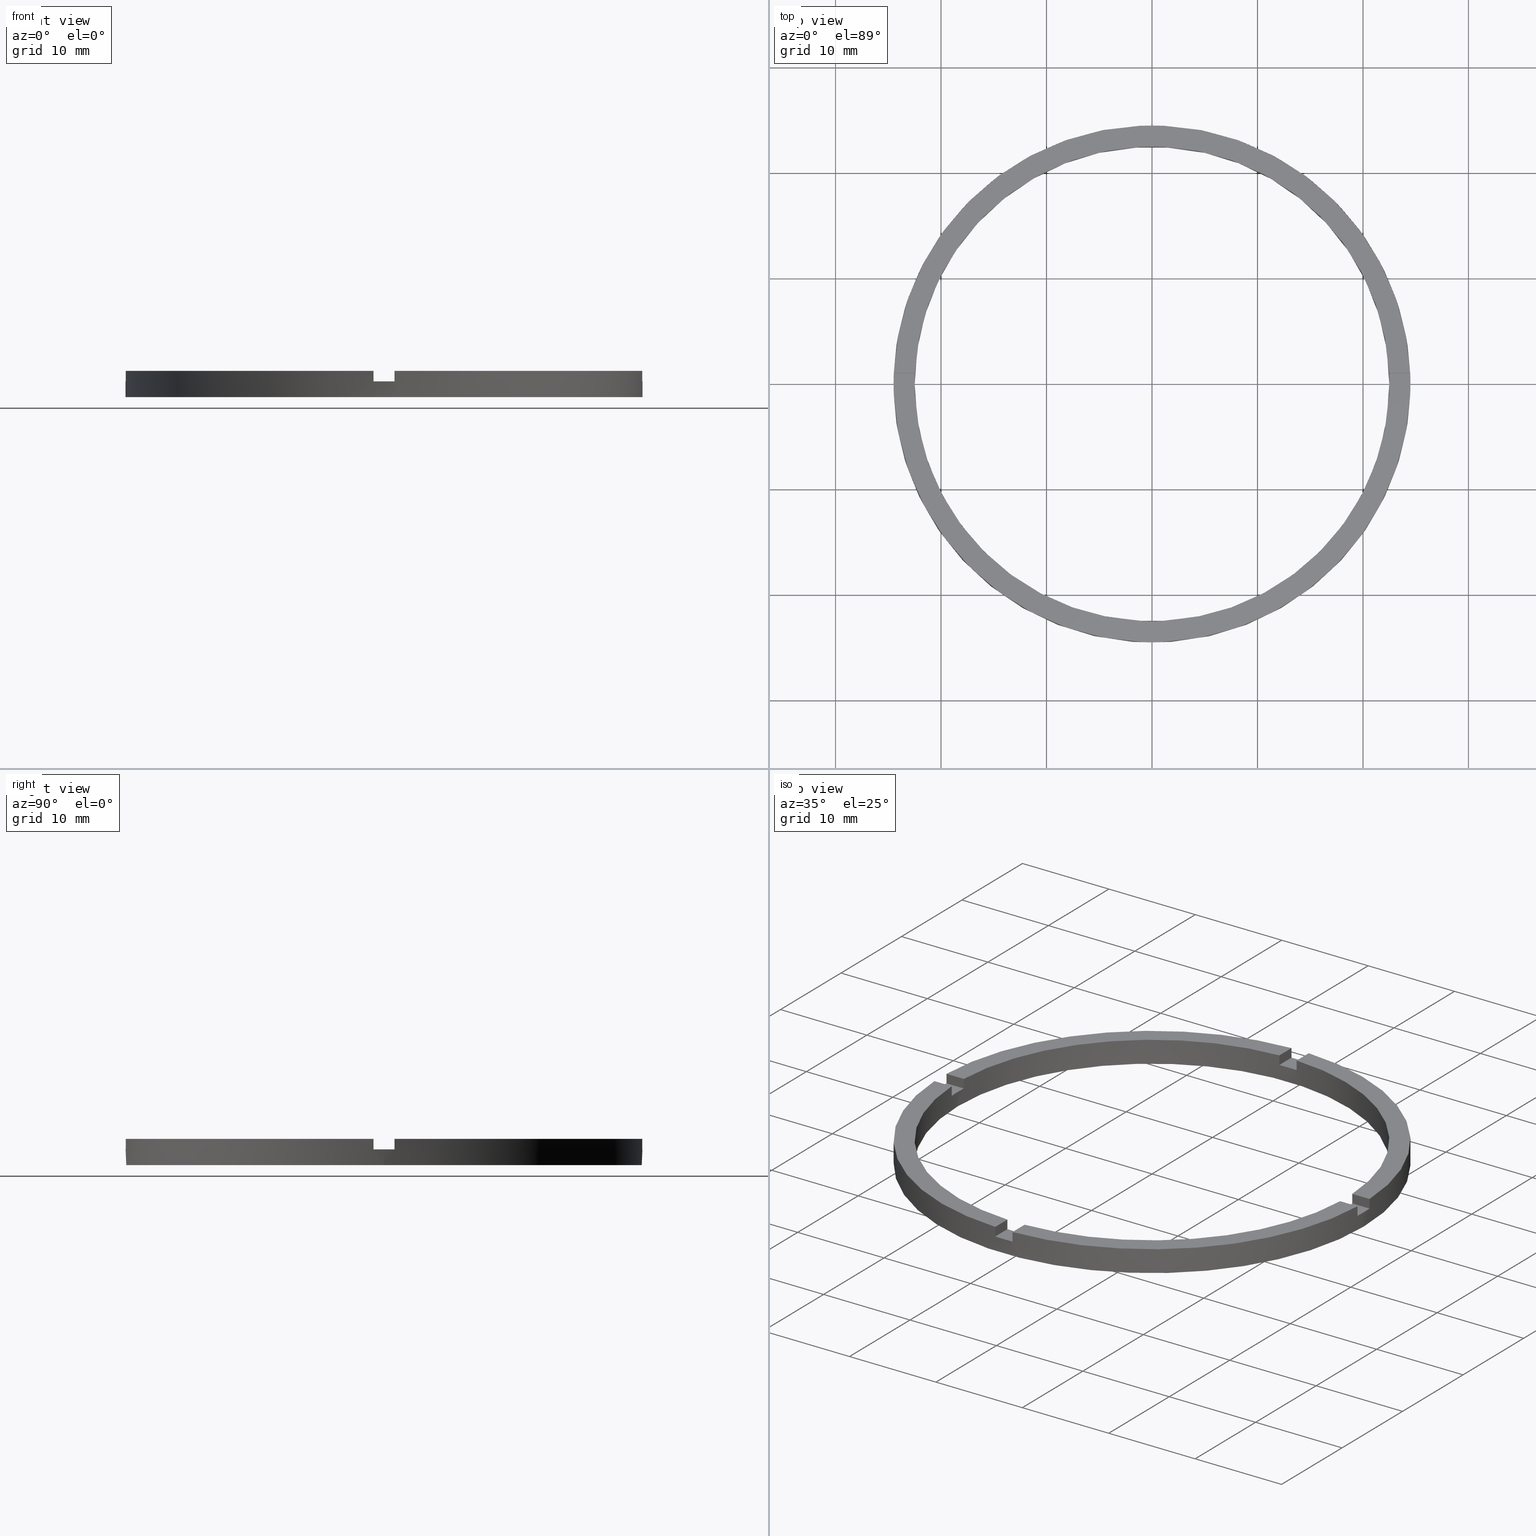
[diagram: canonical four-view strip — front | top / right | iso, engineering-drawing reading convention]
A machine part, canonical four-view strip (front | top / right | iso — engineering-drawing reading convention). The complete STEP part file that produces these views, byte-faithful:
ISO-10303-21;
HEADER;
FILE_DESCRIPTION (( 'STEP AP203' ),
    '1' );
FILE_NAME ('514102.step',
    '2024-12-26T02:37:42',
    ( 'MSI' ),
    ( '' ),
    'SwSTEP 2.0',
    'SolidWorks 2020',
    '' );
FILE_SCHEMA (( 'CONFIG_CONTROL_DESIGN' ));
ENDSEC;

DATA;
#1 = ADVANCED_FACE ( 'NONE', ( #558 ), #567, .F. ) ;
#2 = ORIENTED_EDGE ( 'NONE', *, *, #452, .F. ) ;
#3 = ORIENTED_EDGE ( 'NONE', *, *, #160, .T. ) ;
#4 = APPROVAL_ROLE ( '' ) ;
#5 = ORIENTED_EDGE ( 'NONE', *, *, #212, .F. ) ;
#6 = CARTESIAN_POINT ( 'NONE',  ( 0.000000000000000000, 0.000000000000000000, 2.500000000000000000 ) ) ;
#7 = CARTESIAN_POINT ( 'NONE',  ( -22.47776679298902636, -1.000000000000025313, 2.500000000000000000 ) ) ;
#8 = LINE ( 'NONE', #716, #304 ) ;
#9 = DIRECTION ( 'NONE',  ( 1.000000000000000000, 1.734723475976807341E-16, -0.000000000000000000 ) ) ;
#10 = VERTEX_POINT ( 'NONE', #254 ) ;
#11 = VECTOR ( 'NONE', #710, 1000.000000000000000 ) ;
#12 = EDGE_CURVE ( 'NONE', #632, #373, #291, .T. ) ;
#13 = EDGE_LOOP ( 'NONE', ( #458, #637 ) ) ;
#14 = ORIENTED_EDGE ( 'NONE', *, *, #428, .T. ) ;
#15 = DIRECTION ( 'NONE',  ( 0.000000000000000000, 0.000000000000000000, 1.000000000000000000 ) ) ;
#16 = EDGE_CURVE ( 'NONE', #448, #340, #294, .T. ) ;
#17 = PERSON_AND_ORGANIZATION_ROLE ( 'design_supplier' ) ;
#18 = FACE_OUTER_BOUND ( 'NONE', #708, .T. ) ;
#19 = DIRECTION ( 'NONE',  ( 0.000000000000000000, 0.000000000000000000, 1.000000000000000000 ) ) ;
#20 = MANIFOLD_SOLID_BREP ( '�г�-����1', #677 ) ;
#21 = VERTEX_POINT ( 'NONE', #198 ) ;
#22 = AXIS2_PLACEMENT_3D ( 'NONE', #473, #104, #445 ) ;
#23 = ORIENTED_EDGE ( 'NONE', *, *, #513, .F. ) ;
#24 = CARTESIAN_POINT ( 'NONE',  ( -22.50000000000000355, 0.000000000000000000, 2.500000000000000000 ) ) ;
#25 = VERTEX_POINT ( 'NONE', #407 ) ;
#26 = VERTEX_POINT ( 'NONE', #675 ) ;
#27 = DIRECTION ( 'NONE',  ( 0.000000000000000000, 0.000000000000000000, 1.000000000000000000 ) ) ;
#28 = EDGE_LOOP ( 'NONE', ( #115, #14, #33, #717 ) ) ;
#29 = PRODUCT_DEFINITION_FORMATION_WITH_SPECIFIED_SOURCE ( '�κ�', '', #320, .NOT_KNOWN. ) ;
#30 = ORIENTED_EDGE ( 'NONE', *, *, #414, .F. ) ;
#31 = ORIENTED_EDGE ( 'NONE', *, *, #699, .F. ) ;
#32 = LINE ( 'NONE', #184, #555 ) ;
#33 = ORIENTED_EDGE ( 'NONE', *, *, #140, .T. ) ;
#34 = PLANE ( 'NONE',  #22 ) ;
#35 =( NAMED_UNIT ( * ) PLANE_ANGLE_UNIT ( ) SI_UNIT ( $, .RADIAN. ) );
#36 = LINE ( 'NONE', #100, #565 ) ;
#37 = DIRECTION ( 'NONE',  ( -1.301042606982605321E-16, 1.000000000000000000, -0.000000000000000000 ) ) ;
#38 = EDGE_LOOP ( 'NONE', ( #185, #371, #123, #92, #451, #166, #627, #118, #329, #117, #604, #634 ) ) ;
#39 = CIRCLE ( 'NONE', #418, 24.50000000000000000 ) ;
#40 = ORIENTED_EDGE ( 'NONE', *, *, #129, .F. ) ;
#41 = ORIENTED_EDGE ( 'NONE', *, *, #683, .T. ) ;
#42 = CARTESIAN_POINT ( 'NONE',  ( 0.000000000000000000, 0.000000000000000000, 2.500000000000000000 ) ) ;
#43 = CARTESIAN_POINT ( 'NONE',  ( -14.50000000000018652, 0.9999999999999759082, 1.500000000000000000 ) ) ;
#44 = LINE ( 'NONE', #438, #46 ) ;
#45 = CARTESIAN_POINT ( 'NONE',  ( 0.000000000000000000, 0.000000000000000000, 1.500000000000000000 ) ) ;
#46 = VECTOR ( 'NONE', #333, 1000.000000000000000 ) ;
#47 = VECTOR ( 'NONE', #181, 1000.000000000000000 ) ;
#48 = LINE ( 'NONE', #630, #54 ) ;
#49 = CARTESIAN_POINT ( 'NONE',  ( 0.000000000000000000, 0.000000000000000000, 1.500000000000000000 ) ) ;
#50 = DIRECTION ( 'NONE',  ( -0.000000000000000000, -0.000000000000000000, -1.000000000000000000 ) ) ;
#51 = FACE_OUTER_BOUND ( 'NONE', #753, .T. ) ;
#52 = DIRECTION ( 'NONE',  ( 1.000000000000000000, 0.000000000000000000, 0.000000000000000000 ) ) ;
#53 = LINE ( 'NONE', #159, #571 ) ;
#54 = VECTOR ( 'NONE', #727, 1000.000000000000000 ) ;
#55 = VECTOR ( 'NONE', #539, 1000.000000000000000 ) ;
#56 = ORIENTED_EDGE ( 'NONE', *, *, #232, .F. ) ;
#57 = VECTOR ( 'NONE', #37, 1000.000000000000000 ) ;
#58 = FACE_OUTER_BOUND ( 'NONE', #13, .T. ) ;
#59 = EDGE_CURVE ( 'NONE', #300, #448, #548, .T. ) ;
#60 = CIRCLE ( 'NONE', #313, 24.50000000000000000 ) ;
#61 = EDGE_CURVE ( 'NONE', #21, #437, #561, .T. ) ;
#62 = CIRCLE ( 'NONE', #656, 24.50000000000000000 ) ;
#63 = VECTOR ( 'NONE', #352, 1000.000000000000000 ) ;
#64 = CIRCLE ( 'NONE', #477, 24.50000000000000000 ) ;
#65 = AXIS2_PLACEMENT_3D ( 'NONE', #441, #484, #576 ) ;
#66 = FACE_OUTER_BOUND ( 'NONE', #38, .T. ) ;
#67 = ADVANCED_FACE ( 'NONE', ( #51 ), #146, .T. ) ;
#68 = CIRCLE ( 'NONE', #135, 22.50000000000000355 ) ;
#69 = FACE_OUTER_BOUND ( 'NONE', #226, .T. ) ;
#70 = CARTESIAN_POINT ( 'NONE',  ( 0.9999999999999740208, 22.47776679298902636, 2.500000000000000000 ) ) ;
#71 = VECTOR ( 'NONE', #510, 1000.000000000000000 ) ;
#72 = VERTEX_POINT ( 'NONE', #655 ) ;
#73 = CIRCLE ( 'NONE', #700, 22.50000000000000355 ) ;
#74 = ORIENTED_EDGE ( 'NONE', *, *, #780, .T. ) ;
#75 = VECTOR ( 'NONE', #636, 1000.000000000000000 ) ;
#76 = ORIENTED_EDGE ( 'NONE', *, *, #177, .F. ) ;
#77 = ADVANCED_FACE ( 'NONE', ( #18 ), #575, .T. ) ;
#78 = VECTOR ( 'NONE', #665, 1000.000000000000000 ) ;
#79 = CARTESIAN_POINT ( 'NONE',  ( -22.47776679298902636, 0.9999999999999746869, 1.500000000000000000 ) ) ;
#80 = LINE ( 'NONE', #444, #358 ) ;
#81 = AXIS2_PLACEMENT_3D ( 'NONE', #395, #563, #389 ) ;
#82 = LINE ( 'NONE', #376, #103 ) ;
#83 = SECURITY_CLASSIFICATION ( '', '', #105 ) ;
#84 = CARTESIAN_POINT ( 'NONE',  ( 0.9999999999999740208, 24.47958332978729601, 1.500000000000000000 ) ) ;
#85 = FACE_OUTER_BOUND ( 'NONE', #424, .T. ) ;
#86 = DIRECTION ( 'NONE',  ( 0.000000000000000000, 0.000000000000000000, 1.000000000000000000 ) ) ;
#87 = CIRCLE ( 'NONE', #447, 22.50000000000000355 ) ;
#88 = ADVANCED_FACE ( 'NONE', ( #286 ), #194, .T. ) ;
#89 = VECTOR ( 'NONE', #401, 1000.000000000000000 ) ;
#90 = ORIENTED_EDGE ( 'NONE', *, *, #469, .F. ) ;
#91 = CIRCLE ( 'NONE', #755, 22.50000000000000355 ) ;
#92 = ORIENTED_EDGE ( 'NONE', *, *, #714, .F. ) ;
#93 = AXIS2_PLACEMENT_3D ( 'NONE', #353, #406, #457 ) ;
#94 = CIRCLE ( 'NONE', #199, 24.50000000000000000 ) ;
#95 = EDGE_CURVE ( 'NONE', #693, #437, #308, .T. ) ;
#96 = CARTESIAN_POINT ( 'NONE',  ( -1.000000000000162093, -14.50000000000018119, 1.500000000000000000 ) ) ;
#97 = DATE_TIME_ROLE ( 'creation_date' ) ;
#98 = CARTESIAN_POINT ( 'NONE',  ( 0.9999999999998389066, -22.47776679298903346, 2.500000000000000000 ) ) ;
#99 = DIRECTION ( 'NONE',  ( 1.000000000000000000, 0.000000000000000000, 0.000000000000000000 ) ) ;
#100 = CARTESIAN_POINT ( 'NONE',  ( 0.9999999999998380185, -14.50000000000018119, 2.500000000000000000 ) ) ;
#101 = FACE_OUTER_BOUND ( 'NONE', #288, .T. ) ;
#102 = EDGE_CURVE ( 'NONE', #300, #560, #545, .T. ) ;
#103 = VECTOR ( 'NONE', #718, 1000.000000000000000 ) ;
#104 = DIRECTION ( 'NONE',  ( 0.000000000000000000, 0.000000000000000000, 1.000000000000000000 ) ) ;
#105 = SECURITY_CLASSIFICATION_LEVEL ( 'unclassified' ) ;
#106 = CARTESIAN_POINT ( 'NONE',  ( -24.47958332978729601, -1.000000000000025757, 2.500000000000000000 ) ) ;
#107 = VERTEX_POINT ( 'NONE', #646 ) ;
#108 = VERTEX_POINT ( 'NONE', #680 ) ;
#109 = AXIS2_PLACEMENT_3D ( 'NONE', #600, #19, #735 ) ;
#110 = ORIENTED_EDGE ( 'NONE', *, *, #301, .T. ) ;
#111 = ORIENTED_EDGE ( 'NONE', *, *, #492, .T. ) ;
#112 = CARTESIAN_POINT ( 'NONE',  ( -14.50000000000018652, -1.000000000000023981, 1.500000000000000000 ) ) ;
#113 = PERSON_AND_ORGANIZATION_ROLE ( 'creator' ) ;
#114 = CARTESIAN_POINT ( 'NONE',  ( 14.49999999999999467, -1.000000000000158096, 2.500000000000000000 ) ) ;
#115 = ORIENTED_EDGE ( 'NONE', *, *, #143, .F. ) ;
#116 = AXIS2_PLACEMENT_3D ( 'NONE', #663, #369, #416 ) ;
#117 = ORIENTED_EDGE ( 'NONE', *, *, #95, .F. ) ;
#118 = ORIENTED_EDGE ( 'NONE', *, *, #740, .F. ) ;
#119 = ORIENTED_EDGE ( 'NONE', *, *, #610, .T. ) ;
#120 = DIRECTION ( 'NONE',  ( 1.000000000000000000, 1.734723475976807341E-16, 0.000000000000000000 ) ) ;
#121 = DIRECTION ( 'NONE',  ( 1.000000000000000000, 4.336808689942018352E-17, 0.000000000000000000 ) ) ;
#122 = ORIENTED_EDGE ( 'NONE', *, *, #730, .T. ) ;
#123 = ORIENTED_EDGE ( 'NONE', *, *, #699, .T. ) ;
#124 = EDGE_CURVE ( 'NONE', #300, #326, #293, .T. ) ;
#125 = DIRECTION ( 'NONE',  ( -0.000000000000000000, -0.000000000000000000, -1.000000000000000000 ) ) ;
#126 = DIRECTION ( 'NONE',  ( 1.000000000000000000, 0.000000000000000000, 0.000000000000000000 ) ) ;
#127 = CC_DESIGN_SECURITY_CLASSIFICATION ( #83, ( #29 ) ) ;
#128 = DIRECTION ( 'NONE',  ( -0.000000000000000000, 0.000000000000000000, 1.000000000000000000 ) ) ;
#129 = EDGE_CURVE ( 'NONE', #108, #707, #53, .T. ) ;
#130 = PERSON ( 'δָ��', 'δָ��', 'δָ��', ('δָ��'), ('δָ��'), ('δָ��') ) ;
#131 = EDGE_CURVE ( 'NONE', #271, #172, #275, .T. ) ;
#132 = DIRECTION ( 'NONE',  ( 1.000000000000000000, 4.336808689942018352E-17, 0.000000000000000000 ) ) ;
#133 = EDGE_CURVE ( 'NONE', #72, #107, #569, .T. ) ;
#134 = DIRECTION ( 'NONE',  ( -1.301042606982605321E-16, 1.000000000000000000, -0.000000000000000000 ) ) ;
#135 = AXIS2_PLACEMENT_3D ( 'NONE', #593, #729, #237 ) ;
#136 = DIRECTION ( 'NONE',  ( 1.000000000000000000, 0.000000000000000000, 0.000000000000000000 ) ) ;
#137 = ADVANCED_FACE ( 'NONE', ( #564 ), #506, .T. ) ;
#138 = PLANE ( 'NONE',  #467 ) ;
#139 = PERSON_AND_ORGANIZATION_ROLE ( 'classification_officer' ) ;
#140 = EDGE_CURVE ( 'NONE', #258, #528, #32, .T. ) ;
#141 = AXIS2_PLACEMENT_3D ( 'NONE', #485, #577, #99 ) ;
#142 = ORIENTED_EDGE ( 'NONE', *, *, #714, .T. ) ;
#143 = EDGE_CURVE ( 'NONE', #546, #220, #573, .T. ) ;
#144 = ADVANCED_FACE ( 'NONE', ( #310 ), #478, .F. ) ;
#145 = DIRECTION ( 'NONE',  ( 1.000000000000000000, 0.000000000000000000, 0.000000000000000000 ) ) ;
#146 = PLANE ( 'NONE',  #109 ) ;
#147 = ORIENTED_EDGE ( 'NONE', *, *, #171, .F. ) ;
#148 = CARTESIAN_POINT ( 'NONE',  ( 0.000000000000000000, 0.000000000000000000, 1.500000000000000000 ) ) ;
#149 = APPROVAL_ROLE ( '' ) ;
#150 = CARTESIAN_POINT ( 'NONE',  ( 0.9999999999998380185, -14.50000000000018119, 1.500000000000000000 ) ) ;
#151 = CARTESIAN_POINT ( 'NONE',  ( 0.000000000000000000, 0.000000000000000000, 1.500000000000000000 ) ) ;
#152 = DIRECTION ( 'NONE',  ( 1.000000000000000000, 0.000000000000000000, 0.000000000000000000 ) ) ;
#153 = CARTESIAN_POINT ( 'NONE',  ( 0.000000000000000000, 0.000000000000000000, 2.500000000000000000 ) ) ;
#154 = DIRECTION ( 'NONE',  ( 1.301042606982605321E-16, -1.000000000000000000, 0.000000000000000000 ) ) ;
#155 = DIRECTION ( 'NONE',  ( -1.000000000000000000, -1.734723475976807341E-16, 0.000000000000000000 ) ) ;
#156 = DIRECTION ( 'NONE',  ( 1.000000000000000000, 0.000000000000000000, 0.000000000000000000 ) ) ;
#157 = CARTESIAN_POINT ( 'NONE',  ( -24.50000000000000000, 0.000000000000000000, 2.500000000000000000 ) ) ;
#158 = DIRECTION ( 'NONE',  ( 0.000000000000000000, 0.000000000000000000, 1.000000000000000000 ) ) ;
#159 = CARTESIAN_POINT ( 'NONE',  ( -1.000000000000025979, 14.50000000000000000, 1.500000000000000000 ) ) ;
#160 = EDGE_CURVE ( 'NONE', #263, #271, #48, .T. ) ;
#161 = DIRECTION ( 'NONE',  ( 0.000000000000000000, 0.000000000000000000, 1.000000000000000000 ) ) ;
#162 = CARTESIAN_POINT ( 'NONE',  ( -14.50000000000018652, -1.000000000000023981, 1.500000000000000000 ) ) ;
#163 = DIRECTION ( 'NONE',  ( 1.000000000000000000, 4.336808689942018352E-17, 0.000000000000000000 ) ) ;
#164 = EDGE_LOOP ( 'NONE', ( #703, #705, #778, #255 ) ) ;
#165 = EDGE_CURVE ( 'NONE', #21, #72, #299, .T. ) ;
#166 = ORIENTED_EDGE ( 'NONE', *, *, #200, .F. ) ;
#167 = EDGE_LOOP ( 'NONE', ( #629, #272, #461, #190 ) ) ;
#168 = ORIENTED_EDGE ( 'NONE', *, *, #610, .F. ) ;
#169 = ORIENTED_EDGE ( 'NONE', *, *, #568, .F. ) ;
#170 = ORIENTED_EDGE ( 'NONE', *, *, #568, .T. ) ;
#171 = EDGE_CURVE ( 'NONE', #368, #713, #44, .T. ) ;
#172 = VERTEX_POINT ( 'NONE', #443 ) ;
#173 = DIRECTION ( 'NONE',  ( 4.336808689942018352E-17, -1.000000000000000000, 0.000000000000000000 ) ) ;
#174 = DIRECTION ( 'NONE',  ( -0.000000000000000000, -0.000000000000000000, -1.000000000000000000 ) ) ;
#175 = AXIS2_PLACEMENT_3D ( 'NONE', #409, #50, #745 ) ;
#176 = ADVANCED_FACE ( 'NONE', ( #535 ), #642, .F. ) ;
#177 = EDGE_CURVE ( 'NONE', #364, #504, #36, .T. ) ;
#178 = CARTESIAN_POINT ( 'NONE',  ( 0.9999999999998393507, -24.47958332978729956, 1.500000000000000000 ) ) ;
#179 = EDGE_LOOP ( 'NONE', ( #422, #251, #450, #119, #248, #490, #5, #183, #374, #365, #453, #530 ) ) ;
#180 = CARTESIAN_POINT ( 'NONE',  ( 0.9999999999998389066, -22.47776679298903346, 2.500000000000000000 ) ) ;
#181 = DIRECTION ( 'NONE',  ( 0.000000000000000000, 1.000000000000000000, 0.000000000000000000 ) ) ;
#182 = AXIS2_PLACEMENT_3D ( 'NONE', #725, #173, #132 ) ;
#183 = ORIENTED_EDGE ( 'NONE', *, *, #232, .T. ) ;
#184 = CARTESIAN_POINT ( 'NONE',  ( 0.9999999999999740208, 14.50000000000000000, 2.500000000000000000 ) ) ;
#185 = ORIENTED_EDGE ( 'NONE', *, *, #440, .F. ) ;
#186 = ORIENTED_EDGE ( 'NONE', *, *, #131, .T. ) ;
#187 = ORIENTED_EDGE ( 'NONE', *, *, #59, .T. ) ;
#188 = DIRECTION ( 'NONE',  ( -0.000000000000000000, -0.000000000000000000, -1.000000000000000000 ) ) ;
#189 = EDGE_CURVE ( 'NONE', #507, #10, #8, .T. ) ;
#190 = ORIENTED_EDGE ( 'NONE', *, *, #189, .T. ) ;
#191 = ORIENTED_EDGE ( 'NONE', *, *, #95, .T. ) ;
#192 = CARTESIAN_POINT ( 'NONE',  ( 0.9999999999999740208, 24.47958332978729601, 2.500000000000000000 ) ) ;
#193 = ORIENTED_EDGE ( 'NONE', *, *, #410, .T. ) ;
#194 = PLANE ( 'NONE',  #498 ) ;
#195 = APPROVAL ( #734, 'δָ��' ) ;
#196 = CARTESIAN_POINT ( 'NONE',  ( 22.50000000000000355, 2.755455298081545172E-15, 0.000000000000000000 ) ) ;
#197 = DIRECTION ( 'NONE',  ( -0.000000000000000000, -0.000000000000000000, -1.000000000000000000 ) ) ;
#198 = CARTESIAN_POINT ( 'NONE',  ( -24.47958332978729601, -1.000000000000025757, 2.500000000000000000 ) ) ;
#199 = AXIS2_PLACEMENT_3D ( 'NONE', #408, #744, #259 ) ;
#200 = EDGE_CURVE ( 'NONE', #10, #632, #39, .T. ) ;
#201 = CARTESIAN_POINT ( 'NONE',  ( 0.000000000000000000, 0.000000000000000000, 2.500000000000000000 ) ) ;
#202 = CARTESIAN_POINT ( 'NONE',  ( 0.000000000000000000, 0.000000000000000000, 2.500000000000000000 ) ) ;
#203 = DIRECTION ( 'NONE',  ( -0.000000000000000000, -1.000000000000000000, -0.000000000000000000 ) ) ;
#204 = DIRECTION ( 'NONE',  ( 1.000000000000000000, 0.000000000000000000, 0.000000000000000000 ) ) ;
#205 = DESIGN_CONTEXT ( 'detailed design', #679, 'design' ) ;
#206 = DIRECTION ( 'NONE',  ( 0.000000000000000000, 0.000000000000000000, 1.000000000000000000 ) ) ;
#207 = DIRECTION ( 'NONE',  ( -0.000000000000000000, -0.000000000000000000, -1.000000000000000000 ) ) ;
#208 = EDGE_CURVE ( 'NONE', #230, #529, #265, .T. ) ;
#209 = AXIS2_PLACEMENT_3D ( 'NONE', #45, #486, #446 ) ;
#210 = DIRECTION ( 'NONE',  ( 1.000000000000000000, 0.000000000000000000, 0.000000000000000000 ) ) ;
#211 = CARTESIAN_POINT ( 'NONE',  ( -1.000000000000161204, -22.47776679298901925, 2.500000000000000000 ) ) ;
#212 = EDGE_CURVE ( 'NONE', #713, #707, #579, .T. ) ;
#213 = AXIS2_PLACEMENT_3D ( 'NONE', #318, #384, #228 ) ;
#214 = CARTESIAN_POINT ( 'NONE',  ( 24.50000000000000000, 3.000384657911015469E-15, 0.000000000000000000 ) ) ;
#215 = DIRECTION ( 'NONE',  ( -1.000000000000000000, 0.000000000000000000, 0.000000000000000000 ) ) ;
#216 = CARTESIAN_POINT ( 'NONE',  ( 22.47776679298901925, -1.000000000000157874, 1.500000000000000000 ) ) ;
#217 = PERSON_AND_ORGANIZATION ( #130, #499 ) ;
#218 = CC_DESIGN_PERSON_AND_ORGANIZATION_ASSIGNMENT ( #242, #17, ( #29 ) ) ;
#219 = APPROVAL_PERSON_ORGANIZATION ( #217, #195, #149 ) ;
#220 = VERTEX_POINT ( 'NONE', #84 ) ;
#221 = CIRCLE ( 'NONE', #93, 24.50000000000000000 ) ;
#222 = ORIENTED_EDGE ( 'NONE', *, *, #102, .F. ) ;
#223 = LOCAL_TIME ( 10, 37, 42.00000000000000000, #525 ) ;
#224 = ORIENTED_EDGE ( 'NONE', *, *, #746, .T. ) ;
#225 = CARTESIAN_POINT ( 'NONE',  ( -22.50000000000000355, 0.000000000000000000, 0.000000000000000000 ) ) ;
#226 = EDGE_LOOP ( 'NONE', ( #366, #111, #626, #465 ) ) ;
#227 = EDGE_LOOP ( 'NONE', ( #552, #289, #246, #281 ) ) ;
#228 = DIRECTION ( 'NONE',  ( -1.000000000000000000, -4.336808689942018352E-17, 0.000000000000000000 ) ) ;
#229 = DATE_AND_TIME ( #505, #223 ) ;
#230 = VERTEX_POINT ( 'NONE', #412 ) ;
#231 = DATE_AND_TIME ( #253, #749 ) ;
#232 = EDGE_CURVE ( 'NONE', #713, #271, #583, .T. ) ;
#233 = PERSON_AND_ORGANIZATION ( #130, #499 ) ;
#234 = LINE ( 'NONE', #317, #514 ) ;
#235 = ADVANCED_FACE ( 'NONE', ( #58, #296 ), #379, .F. ) ;
#236 = APPROVAL_PERSON_ORGANIZATION ( #779, #367, #4 ) ;
#237 = DIRECTION ( 'NONE',  ( 1.000000000000000000, 0.000000000000000000, 0.000000000000000000 ) ) ;
#238 = APPROVAL_DATE_TIME ( #249, #732 ) ;
#239 = DIRECTION ( 'NONE',  ( -1.734723475976807341E-16, 1.000000000000000000, 0.000000000000000000 ) ) ;
#240 = PERSON_AND_ORGANIZATION ( #130, #499 ) ;
#241 = CARTESIAN_POINT ( 'NONE',  ( 24.47958332978729956, 0.9999999999998423483, 1.500000000000000000 ) ) ;
#242 = PERSON_AND_ORGANIZATION ( #130, #499 ) ;
#243 = PERSON_AND_ORGANIZATION ( #130, #499 ) ;
#244 = CARTESIAN_POINT ( 'NONE',  ( 22.47776679298901925, -1.000000000000157874, 2.500000000000000000 ) ) ;
#245 = CARTESIAN_POINT ( 'NONE',  ( 0.000000000000000000, 0.000000000000000000, 2.500000000000000000 ) ) ;
#246 = ORIENTED_EDGE ( 'NONE', *, *, #12, .F. ) ;
#247 = COORDINATED_UNIVERSAL_TIME_OFFSET ( 8, 0, .AHEAD. ) ;
#248 = ORIENTED_EDGE ( 'NONE', *, *, #428, .F. ) ;
#249 = DATE_AND_TIME ( #512, #519 ) ;
#250 = AXIS2_PLACEMENT_3D ( 'NONE', #6, #15, #337 ) ;
#251 = ORIENTED_EDGE ( 'NONE', *, *, #572, .T. ) ;
#252 = CARTESIAN_POINT ( 'NONE',  ( 22.50000000000000355, 2.755455298081545172E-15, 1.500000000000000000 ) ) ;
#253 = CALENDAR_DATE ( 2024, 26, 12 ) ;
#254 = CARTESIAN_POINT ( 'NONE',  ( -1.000000000000160760, -24.47958332978728890, 1.500000000000000000 ) ) ;
#255 = ORIENTED_EDGE ( 'NONE', *, *, #61, .F. ) ;
#256 = DIRECTION ( 'NONE',  ( 0.000000000000000000, 0.000000000000000000, 1.000000000000000000 ) ) ;
#257 = ORIENTED_EDGE ( 'NONE', *, *, #124, .F. ) ;
#258 = VERTEX_POINT ( 'NONE', #70 ) ;
#259 = DIRECTION ( 'NONE',  ( 1.000000000000000000, 0.000000000000000000, 0.000000000000000000 ) ) ;
#260 = DIRECTION ( 'NONE',  ( 0.000000000000000000, 0.000000000000000000, 1.000000000000000000 ) ) ;
#261 = CARTESIAN_POINT ( 'NONE',  ( -14.50000000000018652, 0.9999999999999759082, 2.500000000000000000 ) ) ;
#262 = AXIS2_PLACEMENT_3D ( 'NONE', #354, #509, #599 ) ;
#263 = VERTEX_POINT ( 'NONE', #79 ) ;
#264 = LINE ( 'NONE', #661, #269 ) ;
#265 = LINE ( 'NONE', #24, #542 ) ;
#266 = DIRECTION ( 'NONE',  ( 0.000000000000000000, -0.000000000000000000, 1.000000000000000000 ) ) ;
#267 = CARTESIAN_POINT ( 'NONE',  ( -1.000000000000025979, 22.47776679298902636, 2.500000000000000000 ) ) ;
#268 = CC_DESIGN_PERSON_AND_ORGANIZATION_ASSIGNMENT ( #240, #635, ( #29 ) ) ;
#269 = VECTOR ( 'NONE', #771, 1000.000000000000000 ) ;
#270 = DIRECTION ( 'NONE',  ( 0.000000000000000000, 0.000000000000000000, 1.000000000000000000 ) ) ;
#271 = VERTEX_POINT ( 'NONE', #466 ) ;
#272 = ORIENTED_EDGE ( 'NONE', *, *, #12, .T. ) ;
#273 = APPROVAL_DATE_TIME ( #287, #195 ) ;
#274 = EDGE_LOOP ( 'NONE', ( #759, #711, #40, #283 ) ) ;
#275 = LINE ( 'NONE', #261, #553 ) ;
#276 = ORIENTED_EDGE ( 'NONE', *, *, #720, .T. ) ;
#277 = VECTOR ( 'NONE', #652, 1000.000000000000000 ) ;
#278 =( GEOMETRIC_REPRESENTATION_CONTEXT ( 3 ) GLOBAL_UNCERTAINTY_ASSIGNED_CONTEXT ( ( #398 ) ) GLOBAL_UNIT_ASSIGNED_CONTEXT ( ( #324, #35, #350 ) ) REPRESENTATION_CONTEXT ( 'NONE', 'WORKASPACE' ) );
#279 = ORIENTED_EDGE ( 'NONE', *, *, #643, .F. ) ;
#280 = ORIENTED_EDGE ( 'NONE', *, *, #662, .F. ) ;
#281 = ORIENTED_EDGE ( 'NONE', *, *, #307, .F. ) ;
#282 = ORIENTED_EDGE ( 'NONE', *, *, #301, .F. ) ;
#283 = ORIENTED_EDGE ( 'NONE', *, *, #748, .F. ) ;
#284 = VECTOR ( 'NONE', #9, 1000.000000000000000 ) ;
#285 = EDGE_LOOP ( 'NONE', ( #689, #74, #694, #347, #351, #372, #434, #282, #543, #584, #551, #681 ) ) ;
#286 = FACE_OUTER_BOUND ( 'NONE', #167, .T. ) ;
#287 = DATE_AND_TIME ( #756, #491 ) ;
#288 = EDGE_LOOP ( 'NONE', ( #750, #544, #280, #534 ) ) ;
#289 = ORIENTED_EDGE ( 'NONE', *, *, #380, .T. ) ;
#290 = ORIENTED_EDGE ( 'NONE', *, *, #730, .F. ) ;
#291 = LINE ( 'NONE', #150, #57 ) ;
#292 = ORIENTED_EDGE ( 'NONE', *, *, #572, .F. ) ;
#293 = LINE ( 'NONE', #495, #581 ) ;
#294 = LINE ( 'NONE', #114, #540 ) ;
#295 = SHAPE_DEFINITION_REPRESENTATION ( #621, #488 ) ;
#296 = FACE_BOUND ( 'NONE', #538, .T. ) ;
#297 = DIRECTION ( 'NONE',  ( 1.000000000000000000, 0.000000000000000000, 0.000000000000000000 ) ) ;
#298 = CARTESIAN_POINT ( 'NONE',  ( 24.47958332978728890, -1.000000000000157652, 1.500000000000000000 ) ) ;
#299 = LINE ( 'NONE', #420, #284 ) ;
#300 = VERTEX_POINT ( 'NONE', #216 ) ;
#301 = EDGE_CURVE ( 'NONE', #507, #107, #311, .T. ) ;
#302 = ORIENTED_EDGE ( 'NONE', *, *, #704, .F. ) ;
#303 = VECTOR ( 'NONE', #207, 1000.000000000000000 ) ;
#304 = VECTOR ( 'NONE', #682, 1000.000000000000000 ) ;
#305 = ORIENTED_EDGE ( 'NONE', *, *, #748, .T. ) ;
#306 = DIRECTION ( 'NONE',  ( 0.000000000000000000, 0.000000000000000000, 1.000000000000000000 ) ) ;
#307 = EDGE_CURVE ( 'NONE', #364, #632, #264, .T. ) ;
#308 = CIRCLE ( 'NONE', #209, 24.50000000000000000 ) ;
#309 = ORIENTED_EDGE ( 'NONE', *, *, #140, .F. ) ;
#310 = FACE_OUTER_BOUND ( 'NONE', #274, .T. ) ;
#311 = LINE ( 'NONE', #211, #11 ) ;
#312 = DIRECTION ( 'NONE',  ( 0.000000000000000000, 1.000000000000000000, 0.000000000000000000 ) ) ;
#313 = AXIS2_PLACEMENT_3D ( 'NONE', #531, #664, #152 ) ;
#314 = LINE ( 'NONE', #723, #89 ) ;
#315 = FACE_OUTER_BOUND ( 'NONE', #482, .T. ) ;
#316 = CARTESIAN_POINT ( 'NONE',  ( 0.9999999999999740208, 22.47776679298902636, 1.500000000000000000 ) ) ;
#317 = CARTESIAN_POINT ( 'NONE',  ( 0.9999999999999740208, 24.47958332978729601, 2.500000000000000000 ) ) ;
#318 = CARTESIAN_POINT ( 'NONE',  ( 14.49999999999999467, 0.9999999999998419042, 1.500000000000000000 ) ) ;
#319 = LINE ( 'NONE', #515, #591 ) ;
#320 = PRODUCT ( '514102', '514102', '', ( #474 ) ) ;
#321 = FACE_OUTER_BOUND ( 'NONE', #285, .T. ) ;
#322 = AXIS2_PLACEMENT_3D ( 'NONE', #202, #206, #659 ) ;
#323 = PLANE ( 'NONE',  #660 ) ;
#324 =( LENGTH_UNIT ( ) NAMED_UNIT ( * ) SI_UNIT ( .MILLI., .METRE. ) );
#325 = CIRCLE ( 'NONE', #399, 24.50000000000000000 ) ;
#326 = VERTEX_POINT ( 'NONE', #298 ) ;
#327 = FACE_OUTER_BOUND ( 'NONE', #332, .T. ) ;
#328 = LINE ( 'NONE', #709, #348 ) ;
#329 = ORIENTED_EDGE ( 'NONE', *, *, #61, .T. ) ;
#330 = DIRECTION ( 'NONE',  ( 1.000000000000000000, 0.000000000000000000, 0.000000000000000000 ) ) ;
#331 = CIRCLE ( 'NONE', #650, 24.50000000000000000 ) ;
#332 = EDGE_LOOP ( 'NONE', ( #686, #433, #76, #142 ) ) ;
#333 = DIRECTION ( 'NONE',  ( -0.000000000000000000, -1.000000000000000000, -0.000000000000000000 ) ) ;
#334 = PLANE ( 'NONE',  #360 ) ;
#335 = FACE_OUTER_BOUND ( 'NONE', #179, .T. ) ;
#336 = VECTOR ( 'NONE', #86, 1000.000000000000000 ) ;
#337 = DIRECTION ( 'NONE',  ( 1.000000000000000000, 0.000000000000000000, -0.000000000000000000 ) ) ;
#338 = LINE ( 'NONE', #741, #609 ) ;
#339 = DIRECTION ( 'NONE',  ( 1.000000000000000000, 0.000000000000000000, 0.000000000000000000 ) ) ;
#340 = VERTEX_POINT ( 'NONE', #602 ) ;
#341 = DIRECTION ( 'NONE',  ( 0.000000000000000000, 0.000000000000000000, 1.000000000000000000 ) ) ;
#342 = VECTOR ( 'NONE', #733, 1000.000000000000000 ) ;
#343 = DIRECTION ( 'NONE',  ( 0.000000000000000000, 0.000000000000000000, 1.000000000000000000 ) ) ;
#344 = EDGE_CURVE ( 'NONE', #263, #230, #601, .T. ) ;
#345 = DIRECTION ( 'NONE',  ( 1.000000000000000000, 0.000000000000000000, -0.000000000000000000 ) ) ;
#346 = FACE_OUTER_BOUND ( 'NONE', #164, .T. ) ;
#347 = ORIENTED_EDGE ( 'NONE', *, *, #208, .F. ) ;
#348 = VECTOR ( 'NONE', #619, 1000.000000000000000 ) ;
#349 = DIRECTION ( 'NONE',  ( 0.000000000000000000, 0.000000000000000000, 1.000000000000000000 ) ) ;
#350 =( NAMED_UNIT ( * ) SI_UNIT ( $, .STERADIAN. ) SOLID_ANGLE_UNIT ( ) );
#351 = ORIENTED_EDGE ( 'NONE', *, *, #513, .T. ) ;
#352 = DIRECTION ( 'NONE',  ( -0.000000000000000000, -0.000000000000000000, -1.000000000000000000 ) ) ;
#353 = CARTESIAN_POINT ( 'NONE',  ( 0.000000000000000000, 0.000000000000000000, 1.500000000000000000 ) ) ;
#354 = CARTESIAN_POINT ( 'NONE',  ( 0.000000000000000000, 0.000000000000000000, 1.500000000000000000 ) ) ;
#355 = EDGE_CURVE ( 'NONE', #507, #373, #605, .T. ) ;
#356 = CARTESIAN_POINT ( 'NONE',  ( 0.000000000000000000, 0.000000000000000000, 2.500000000000000000 ) ) ;
#357 = CIRCLE ( 'NONE', #702, 22.50000000000000355 ) ;
#358 = VECTOR ( 'NONE', #27, 1000.000000000000000 ) ;
#359 = LINE ( 'NONE', #644, #342 ) ;
#360 = AXIS2_PLACEMENT_3D ( 'NONE', #153, #396, #345 ) ;
#361 = ORIENTED_EDGE ( 'NONE', *, *, #165, .F. ) ;
#362 = CC_DESIGN_DATE_AND_TIME_ASSIGNMENT ( #501, #97, ( #774 ) ) ;
#363 = ORIENTED_EDGE ( 'NONE', *, *, #400, .T. ) ;
#364 = VERTEX_POINT ( 'NONE', #550 ) ;
#365 = ORIENTED_EDGE ( 'NONE', *, *, #344, .T. ) ;
#366 = ORIENTED_EDGE ( 'NONE', *, *, #414, .T. ) ;
#367 = APPROVAL ( #690, 'δָ��' ) ;
#368 = VERTEX_POINT ( 'NONE', #476 ) ;
#369 = DIRECTION ( 'NONE',  ( 0.000000000000000000, 0.000000000000000000, 1.000000000000000000 ) ) ;
#370 = EDGE_LOOP ( 'NONE', ( #309, #168, #30, #582 ) ) ;
#371 = ORIENTED_EDGE ( 'NONE', *, *, #657, .F. ) ;
#372 = ORIENTED_EDGE ( 'NONE', *, *, #764, .F. ) ;
#373 = VERTEX_POINT ( 'NONE', #472 ) ;
#374 = ORIENTED_EDGE ( 'NONE', *, *, #160, .F. ) ;
#375 = DIRECTION ( 'NONE',  ( -0.000000000000000000, -0.000000000000000000, -1.000000000000000000 ) ) ;
#376 = CARTESIAN_POINT ( 'NONE',  ( 24.50000000000000000, 3.000384657911015469E-15, 2.500000000000000000 ) ) ;
#377 = ADVANCED_FACE ( 'NONE', ( #69 ), #381, .F. ) ;
#378 = CARTESIAN_POINT ( 'NONE',  ( 14.49999999999999467, 0.9999999999998419042, 2.500000000000000000 ) ) ;
#379 = PLANE ( 'NONE',  #518 ) ;
#380 = EDGE_CURVE ( 'NONE', #504, #373, #603, .T. ) ;
#381 = PLANE ( 'NONE',  #213 ) ;
#382 = AXIS2_PLACEMENT_3D ( 'NONE', #758, #256, #156 ) ;
#383 = DIRECTION ( 'NONE',  ( 0.000000000000000000, 0.000000000000000000, 1.000000000000000000 ) ) ;
#384 = DIRECTION ( 'NONE',  ( -4.336808689942018352E-17, 1.000000000000000000, 0.000000000000000000 ) ) ;
#385 = DIRECTION ( 'NONE',  ( 1.000000000000000000, 0.000000000000000000, -0.000000000000000000 ) ) ;
#386 = AXIS2_PLACEMENT_3D ( 'NONE', #698, #747, #701 ) ;
#387 = CARTESIAN_POINT ( 'NONE',  ( 0.000000000000000000, 0.000000000000000000, 1.500000000000000000 ) ) ;
#388 = CARTESIAN_POINT ( 'NONE',  ( -1.000000000000025979, 24.47958332978729601, 2.500000000000000000 ) ) ;
#389 = DIRECTION ( 'NONE',  ( 0.000000000000000000, 0.000000000000000000, 1.000000000000000000 ) ) ;
#390 = EDGE_CURVE ( 'NONE', #455, #640, #331, .T. ) ;
#391 = DIRECTION ( 'NONE',  ( -0.000000000000000000, -0.000000000000000000, -1.000000000000000000 ) ) ;
#392 = APPROVAL_STATUS ( 'not_yet_approved' ) ;
#393 = CARTESIAN_POINT ( 'NONE',  ( 0.000000000000000000, 0.000000000000000000, 1.500000000000000000 ) ) ;
#394 = ADVANCED_FACE ( 'NONE', ( #315 ), #431, .F. ) ;
#395 = CARTESIAN_POINT ( 'NONE',  ( -1.000000000000025979, 14.50000000000000000, 1.500000000000000000 ) ) ;
#396 = DIRECTION ( 'NONE',  ( 0.000000000000000000, 0.000000000000000000, 1.000000000000000000 ) ) ;
#397 = CC_DESIGN_PERSON_AND_ORGANIZATION_ASSIGNMENT ( #233, #113, ( #774 ) ) ;
#398 = UNCERTAINTY_MEASURE_WITH_UNIT (LENGTH_MEASURE( 1.000000000000000082E-05 ), #324, 'distance_accuracy_value', 'NONE');
#399 = AXIS2_PLACEMENT_3D ( 'NONE', #356, #260, #126 ) ;
#400 = EDGE_CURVE ( 'NONE', #500, #529, #594, .T. ) ;
#401 = DIRECTION ( 'NONE',  ( 1.301042606982605321E-16, -1.000000000000000000, 0.000000000000000000 ) ) ;
#402 = APPLICATION_PROTOCOL_DEFINITION ( 'international standard', 'config_control_design', 1994, #449 ) ;
#403 = EDGE_CURVE ( 'NONE', #529, #500, #73, .T. ) ;
#404 = ORIENTED_EDGE ( 'NONE', *, *, #440, .T. ) ;
#405 = CARTESIAN_POINT ( 'NONE',  ( 0.000000000000000000, 0.000000000000000000, 1.500000000000000000 ) ) ;
#406 = DIRECTION ( 'NONE',  ( 0.000000000000000000, 0.000000000000000000, 1.000000000000000000 ) ) ;
#407 = CARTESIAN_POINT ( 'NONE',  ( 24.47958332978729956, 0.9999999999998423483, 2.500000000000000000 ) ) ;
#408 = CARTESIAN_POINT ( 'NONE',  ( 0.000000000000000000, 0.000000000000000000, 0.000000000000000000 ) ) ;
#409 = CARTESIAN_POINT ( 'NONE',  ( 0.000000000000000000, 0.000000000000000000, 2.500000000000000000 ) ) ;
#410 = EDGE_CURVE ( 'NONE', #430, #547, #328, .T. ) ;
#411 = AXIS2_PLACEMENT_3D ( 'NONE', #587, #739, #511 ) ;
#412 = CARTESIAN_POINT ( 'NONE',  ( -22.50000000000000355, 0.000000000000000000, 1.500000000000000000 ) ) ;
#413 = AXIS2_PLACEMENT_3D ( 'NONE', #96, #672, #154 ) ;
#414 = EDGE_CURVE ( 'NONE', #25, #26, #625, .T. ) ;
#415 = CARTESIAN_POINT ( 'NONE',  ( 0.000000000000000000, 0.000000000000000000, 0.000000000000000000 ) ) ;
#416 = DIRECTION ( 'NONE',  ( 1.000000000000000000, 0.000000000000000000, 0.000000000000000000 ) ) ;
#417 = ADVANCED_FACE ( 'NONE', ( #321 ), #589, .F. ) ;
#418 = AXIS2_PLACEMENT_3D ( 'NONE', #736, #426, #671 ) ;
#419 = CC_DESIGN_APPROVAL ( #195, ( #83 ) ) ;
#420 = CARTESIAN_POINT ( 'NONE',  ( -14.50000000000018652, -1.000000000000023981, 2.500000000000000000 ) ) ;
#421 = EDGE_LOOP ( 'NONE', ( #122, #191, #276, #23, #536, #224 ) ) ;
#422 = ORIENTED_EDGE ( 'NONE', *, *, #780, .F. ) ;
#423 = CARTESIAN_POINT ( 'NONE',  ( 0.000000000000000000, 0.000000000000000000, 0.000000000000000000 ) ) ;
#424 = EDGE_LOOP ( 'NONE', ( #762, #719, #193, #292, #222, #631 ) ) ;
#425 = DIRECTION ( 'NONE',  ( 0.000000000000000000, 0.000000000000000000, 1.000000000000000000 ) ) ;
#426 = DIRECTION ( 'NONE',  ( -0.000000000000000000, 0.000000000000000000, 1.000000000000000000 ) ) ;
#427 = CARTESIAN_POINT ( 'NONE',  ( -22.47776679298902636, -1.000000000000025313, 1.500000000000000000 ) ) ;
#428 = EDGE_CURVE ( 'NONE', #546, #258, #80, .T. ) ;
#429 = CARTESIAN_POINT ( 'NONE',  ( 0.000000000000000000, 0.000000000000000000, 2.500000000000000000 ) ) ;
#430 = VERTEX_POINT ( 'NONE', #241 ) ;
#431 = PLANE ( 'NONE',  #182 ) ;
#432 = ADVANCED_FACE ( 'NONE', ( #607 ), #334, .T. ) ;
#433 = ORIENTED_EDGE ( 'NONE', *, *, #470, .F. ) ;
#434 = ORIENTED_EDGE ( 'NONE', *, *, #133, .T. ) ;
#435 = CARTESIAN_POINT ( 'NONE',  ( 22.47776679298903346, 0.9999999999998421263, 1.500000000000000000 ) ) ;
#436 = APPLICATION_PROTOCOL_DEFINITION ( 'international standard', 'config_control_design', 1994, #679 ) ;
#437 = VERTEX_POINT ( 'NONE', #487 ) ;
#438 = CARTESIAN_POINT ( 'NONE',  ( -1.000000000000025979, 14.50000000000000000, 2.500000000000000000 ) ) ;
#439 = ADVANCED_FACE ( 'NONE', ( #335 ), #585, .F. ) ;
#440 = EDGE_CURVE ( 'NONE', #475, #455, #82, .T. ) ;
#441 = CARTESIAN_POINT ( 'NONE',  ( 0.000000000000000000, 0.000000000000000000, 1.500000000000000000 ) ) ;
#442 = DIRECTION ( 'NONE',  ( 1.000000000000000000, 0.000000000000000000, 0.000000000000000000 ) ) ;
#443 = CARTESIAN_POINT ( 'NONE',  ( -24.47958332978729601, 0.9999999999999742428, 2.500000000000000000 ) ) ;
#444 = CARTESIAN_POINT ( 'NONE',  ( 0.9999999999999740208, 22.47776679298902636, 2.500000000000000000 ) ) ;
#445 = DIRECTION ( 'NONE',  ( 1.000000000000000000, 0.000000000000000000, -0.000000000000000000 ) ) ;
#446 = DIRECTION ( 'NONE',  ( 1.000000000000000000, 0.000000000000000000, 0.000000000000000000 ) ) ;
#447 = AXIS2_PLACEMENT_3D ( 'NONE', #148, #383, #737 ) ;
#448 = VERTEX_POINT ( 'NONE', #618 ) ;
#449 = APPLICATION_CONTEXT ( 'configuration controlled 3d designs of mechanical parts and assemblies' ) ;
#450 = ORIENTED_EDGE ( 'NONE', *, *, #492, .F. ) ;
#451 = ORIENTED_EDGE ( 'NONE', *, *, #307, .T. ) ;
#452 = EDGE_CURVE ( 'NONE', #554, #172, #612, .T. ) ;
#453 = ORIENTED_EDGE ( 'NONE', *, *, #208, .T. ) ;
#454 = AXIS2_PLACEMENT_3D ( 'NONE', #731, #239, #155 ) ;
#455 = VERTEX_POINT ( 'NONE', #214 ) ;
#456 = DIRECTION ( 'NONE',  ( 1.000000000000000000, 0.000000000000000000, 0.000000000000000000 ) ) ;
#457 = DIRECTION ( 'NONE',  ( 1.000000000000000000, 0.000000000000000000, 0.000000000000000000 ) ) ;
#458 = ORIENTED_EDGE ( 'NONE', *, *, #647, .F. ) ;
#459 = AXIS2_PLACEMENT_3D ( 'NONE', #667, #676, #648 ) ;
#460 = CC_DESIGN_PERSON_AND_ORGANIZATION_ASSIGNMENT ( #243, #139, ( #83 ) ) ;
#461 = ORIENTED_EDGE ( 'NONE', *, *, #355, .F. ) ;
#462 = ORIENTED_EDGE ( 'NONE', *, *, #592, .F. ) ;
#463 = DIRECTION ( 'NONE',  ( 0.000000000000000000, 0.000000000000000000, 1.000000000000000000 ) ) ;
#464 = PLANE ( 'NONE',  #322 ) ;
#465 = ORIENTED_EDGE ( 'NONE', *, *, #683, .F. ) ;
#466 = CARTESIAN_POINT ( 'NONE',  ( -22.47776679298902636, 0.9999999999999746869, 2.500000000000000000 ) ) ;
#467 = AXIS2_PLACEMENT_3D ( 'NONE', #112, #502, #120 ) ;
#468 = DIRECTION ( 'NONE',  ( 0.000000000000000000, 0.000000000000000000, 1.000000000000000000 ) ) ;
#469 = EDGE_CURVE ( 'NONE', #220, #108, #60, .T. ) ;
#470 = EDGE_CURVE ( 'NONE', #504, #448, #91, .T. ) ;
#471 = CARTESIAN_POINT ( 'NONE',  ( -1.000000000000025979, 22.47776679298902636, 2.500000000000000000 ) ) ;
#472 = CARTESIAN_POINT ( 'NONE',  ( 0.9999999999998389066, -22.47776679298903346, 1.500000000000000000 ) ) ;
#473 = CARTESIAN_POINT ( 'NONE',  ( 0.000000000000000000, 0.000000000000000000, 1.500000000000000000 ) ) ;
#474 = MECHANICAL_CONTEXT ( 'NONE', #449, 'mechanical' ) ;
#475 = VERTEX_POINT ( 'NONE', #651 ) ;
#476 = CARTESIAN_POINT ( 'NONE',  ( -1.000000000000025979, 24.47958332978729601, 2.500000000000000000 ) ) ;
#477 = AXIS2_PLACEMENT_3D ( 'NONE', #201, #468, #516 ) ;
#478 = PLANE ( 'NONE',  #81 ) ;
#479 = VERTEX_POINT ( 'NONE', #684 ) ;
#480 = ORIENTED_EDGE ( 'NONE', *, *, #390, .T. ) ;
#481 = DIRECTION ( 'NONE',  ( 0.000000000000000000, -0.000000000000000000, 1.000000000000000000 ) ) ;
#482 = EDGE_LOOP ( 'NONE', ( #257, #187, #524, #31 ) ) ;
#483 = DATE_TIME_ROLE ( 'classification_date' ) ;
#484 = DIRECTION ( 'NONE',  ( 0.000000000000000000, 0.000000000000000000, 1.000000000000000000 ) ) ;
#485 = CARTESIAN_POINT ( 'NONE',  ( 0.000000000000000000, 0.000000000000000000, 0.000000000000000000 ) ) ;
#486 = DIRECTION ( 'NONE',  ( 0.000000000000000000, 0.000000000000000000, 1.000000000000000000 ) ) ;
#487 = CARTESIAN_POINT ( 'NONE',  ( -24.47958332978729601, -1.000000000000025757, 1.500000000000000000 ) ) ;
#488 = ADVANCED_BREP_SHAPE_REPRESENTATION ( '514102', ( #20, #141 ), #278 ) ;
#489 = COORDINATED_UNIVERSAL_TIME_OFFSET ( 8, 0, .AHEAD. ) ;
#490 = ORIENTED_EDGE ( 'NONE', *, *, #662, .T. ) ;
#491 = LOCAL_TIME ( 10, 37, 42.00000000000000000, #489 ) ;
#492 = EDGE_CURVE ( 'NONE', #26, #547, #338, .T. ) ;
#493 = CARTESIAN_POINT ( 'NONE',  ( -1.000000000000161204, -22.47776679298901925, 1.500000000000000000 ) ) ;
#494 = DIRECTION ( 'NONE',  ( 0.000000000000000000, 0.000000000000000000, 1.000000000000000000 ) ) ;
#495 = CARTESIAN_POINT ( 'NONE',  ( 14.49999999999999467, -1.000000000000158096, 1.500000000000000000 ) ) ;
#496 = COORDINATED_UNIVERSAL_TIME_OFFSET ( 8, 0, .AHEAD. ) ;
#497 = LINE ( 'NONE', #7, #767 ) ;
#498 = AXIS2_PLACEMENT_3D ( 'NONE', #393, #697, #442 ) ;
#499 = ORGANIZATION ( 'δָ��', 'δָ��', '' ) ;
#500 = VERTEX_POINT ( 'NONE', #196 ) ;
#501 = DATE_AND_TIME ( #781, #751 ) ;
#502 = DIRECTION ( 'NONE',  ( 1.734723475976807341E-16, -1.000000000000000000, 0.000000000000000000 ) ) ;
#503 = DIRECTION ( 'NONE',  ( -0.000000000000000000, -0.000000000000000000, -1.000000000000000000 ) ) ;
#504 = VERTEX_POINT ( 'NONE', #98 ) ;
#505 = CALENDAR_DATE ( 2024, 26, 12 ) ;
#506 = PLANE ( 'NONE',  #557 ) ;
#507 = VERTEX_POINT ( 'NONE', #493 ) ;
#508 = LINE ( 'NONE', #673, #777 ) ;
#509 = DIRECTION ( 'NONE',  ( 0.000000000000000000, 0.000000000000000000, 1.000000000000000000 ) ) ;
#510 = DIRECTION ( 'NONE',  ( 1.000000000000000000, 1.734723475976807341E-16, -0.000000000000000000 ) ) ;
#511 = DIRECTION ( 'NONE',  ( -1.301042606982605321E-16, 1.000000000000000000, 0.000000000000000000 ) ) ;
#512 = CALENDAR_DATE ( 2024, 26, 12 ) ;
#513 = EDGE_CURVE ( 'NONE', #230, #598, #624, .T. ) ;
#514 = VECTOR ( 'NONE', #494, 1000.000000000000000 ) ;
#515 = CARTESIAN_POINT ( 'NONE',  ( 24.47958332978728890, -1.000000000000157652, 2.500000000000000000 ) ) ;
#516 = DIRECTION ( 'NONE',  ( 1.000000000000000000, 0.000000000000000000, 0.000000000000000000 ) ) ;
#517 = VECTOR ( 'NONE', #738, 1000.000000000000000 ) ;
#518 = AXIS2_PLACEMENT_3D ( 'NONE', #616, #270, #706 ) ;
#519 = LOCAL_TIME ( 10, 37, 42.00000000000000000, #247 ) ;
#520 = CC_DESIGN_DATE_AND_TIME_ASSIGNMENT ( #231, #483, ( #83 ) ) ;
#521 = VECTOR ( 'NONE', #724, 1000.000000000000000 ) ;
#522 = ORIENTED_EDGE ( 'NONE', *, *, #133, .F. ) ;
#523 = DIRECTION ( 'NONE',  ( -1.000000000000000000, -1.734723475976807341E-16, 0.000000000000000000 ) ) ;
#524 = ORIENTED_EDGE ( 'NONE', *, *, #16, .T. ) ;
#525 = COORDINATED_UNIVERSAL_TIME_OFFSET ( 8, 0, .AHEAD. ) ;
#526 = ORIENTED_EDGE ( 'NONE', *, *, #740, .T. ) ;
#527 = ORIENTED_EDGE ( 'NONE', *, *, #606, .F. ) ;
#528 = VERTEX_POINT ( 'NONE', #192 ) ;
#529 = VERTEX_POINT ( 'NONE', #225 ) ;
#530 = ORIENTED_EDGE ( 'NONE', *, *, #400, .F. ) ;
#531 = CARTESIAN_POINT ( 'NONE',  ( 0.000000000000000000, 0.000000000000000000, 1.500000000000000000 ) ) ;
#532 = ADVANCED_FACE ( 'NONE', ( #85 ), #34, .T. ) ;
#533 = DIRECTION ( 'NONE',  ( 0.000000000000000000, 0.000000000000000000, 1.000000000000000000 ) ) ;
#534 = ORIENTED_EDGE ( 'NONE', *, *, #143, .T. ) ;
#535 = FACE_OUTER_BOUND ( 'NONE', #28, .T. ) ;
#536 = ORIENTED_EDGE ( 'NONE', *, *, #344, .F. ) ;
#537 = ORIENTED_EDGE ( 'NONE', *, *, #189, .F. ) ;
#538 = EDGE_LOOP ( 'NONE', ( #782, #363 ) ) ;
#539 = DIRECTION ( 'NONE',  ( -0.000000000000000000, -0.000000000000000000, -1.000000000000000000 ) ) ;
#540 = VECTOR ( 'NONE', #163, 1000.000000000000000 ) ;
#541 = EDGE_LOOP ( 'NONE', ( #147, #170, #556, #56 ) ) ;
#542 = VECTOR ( 'NONE', #375, 1000.000000000000000 ) ;
#543 = ORIENTED_EDGE ( 'NONE', *, *, #355, .T. ) ;
#544 = ORIENTED_EDGE ( 'NONE', *, *, #129, .T. ) ;
#545 = CIRCLE ( 'NONE', #685, 22.50000000000000355 ) ;
#546 = VERTEX_POINT ( 'NONE', #316 ) ;
#547 = VERTEX_POINT ( 'NONE', #435 ) ;
#548 = LINE ( 'NONE', #244, #277 ) ;
#549 = AXIS2_PLACEMENT_3D ( 'NONE', #691, #188, #742 ) ;
#550 = CARTESIAN_POINT ( 'NONE',  ( 0.9999999999998393507, -24.47958332978729956, 2.500000000000000000 ) ) ;
#551 = ORIENTED_EDGE ( 'NONE', *, *, #470, .T. ) ;
#552 = ORIENTED_EDGE ( 'NONE', *, *, #177, .T. ) ;
#553 = VECTOR ( 'NONE', #523, 1000.000000000000000 ) ;
#554 = VERTEX_POINT ( 'NONE', #633 ) ;
#555 = VECTOR ( 'NONE', #312, 1000.000000000000000 ) ;
#556 = ORIENTED_EDGE ( 'NONE', *, *, #131, .F. ) ;
#557 = AXIS2_PLACEMENT_3D ( 'NONE', #151, #343, #385 ) ;
#558 = FACE_OUTER_BOUND ( 'NONE', #227, .T. ) ;
#559 = ADVANCED_FACE ( 'NONE', ( #595 ), #688, .F. ) ;
#560 = VERTEX_POINT ( 'NONE', #252 ) ;
#561 = LINE ( 'NONE', #106, #303 ) ;
#562 = ORIENTED_EDGE ( 'NONE', *, *, #452, .T. ) ;
#563 = DIRECTION ( 'NONE',  ( -1.000000000000000000, 0.000000000000000000, 0.000000000000000000 ) ) ;
#564 = FACE_OUTER_BOUND ( 'NONE', #421, .T. ) ;
#565 = VECTOR ( 'NONE', #134, 1000.000000000000000 ) ;
#566 = DIRECTION ( 'NONE',  ( 1.000000000000000000, 0.000000000000000000, -0.000000000000000000 ) ) ;
#567 = PLANE ( 'NONE',  #411 ) ;
#568 = EDGE_CURVE ( 'NONE', #368, #172, #611, .T. ) ;
#569 = CIRCLE ( 'NONE', #382, 22.50000000000000355 ) ;
#570 = CC_DESIGN_PERSON_AND_ORGANIZATION_ASSIGNMENT ( #754, #586, ( #320 ) ) ;
#571 = VECTOR ( 'NONE', #203, 1000.000000000000000 ) ;
#572 = EDGE_CURVE ( 'NONE', #560, #547, #87, .T. ) ;
#573 = LINE ( 'NONE', #721, #47 ) ;
#574 = AXIS2_PLACEMENT_3D ( 'NONE', #752, #128, #136 ) ;
#575 = CYLINDRICAL_SURFACE ( 'NONE', #549, 24.50000000000000000 ) ;
#576 = DIRECTION ( 'NONE',  ( 1.000000000000000000, 0.000000000000000000, 0.000000000000000000 ) ) ;
#577 = DIRECTION ( 'NONE',  ( 0.000000000000000000, 0.000000000000000000, 1.000000000000000000 ) ) ;
#578 = CARTESIAN_POINT ( 'NONE',  ( 0.000000000000000000, 0.000000000000000000, 1.500000000000000000 ) ) ;
#579 = LINE ( 'NONE', #471, #55 ) ;
#580 = CC_DESIGN_APPROVAL ( #732, ( #29 ) ) ;
#581 = VECTOR ( 'NONE', #121, 1000.000000000000000 ) ;
#582 = ORIENTED_EDGE ( 'NONE', *, *, #704, .T. ) ;
#583 = CIRCLE ( 'NONE', #116, 22.50000000000000355 ) ;
#584 = ORIENTED_EDGE ( 'NONE', *, *, #380, .F. ) ;
#585 = CYLINDRICAL_SURFACE ( 'NONE', #722, 22.50000000000000355 ) ;
#586 = PERSON_AND_ORGANIZATION_ROLE ( 'design_owner' ) ;
#587 = CARTESIAN_POINT ( 'NONE',  ( 0.9999999999998380185, -14.50000000000018119, 1.500000000000000000 ) ) ;
#588 = FACE_OUTER_BOUND ( 'NONE', #541, .T. ) ;
#589 = CYLINDRICAL_SURFACE ( 'NONE', #668, 22.50000000000000355 ) ;
#590 = LINE ( 'NONE', #658, #63 ) ;
#591 = VECTOR ( 'NONE', #463, 1000.000000000000000 ) ;
#592 = EDGE_CURVE ( 'NONE', #10, #479, #359, .T. ) ;
#593 = CARTESIAN_POINT ( 'NONE',  ( 0.000000000000000000, 0.000000000000000000, 2.500000000000000000 ) ) ;
#594 = CIRCLE ( 'NONE', #614, 22.50000000000000355 ) ;
#595 = FACE_OUTER_BOUND ( 'NONE', #608, .T. ) ;
#596 = CYLINDRICAL_SURFACE ( 'NONE', #175, 24.50000000000000000 ) ;
#597 = LINE ( 'NONE', #162, #71 ) ;
#598 = VERTEX_POINT ( 'NONE', #427 ) ;
#599 = DIRECTION ( 'NONE',  ( 1.000000000000000000, 0.000000000000000000, 0.000000000000000000 ) ) ;
#600 = CARTESIAN_POINT ( 'NONE',  ( 0.000000000000000000, 0.000000000000000000, 2.500000000000000000 ) ) ;
#601 = CIRCLE ( 'NONE', #386, 22.50000000000000355 ) ;
#602 = CARTESIAN_POINT ( 'NONE',  ( 24.47958332978728890, -1.000000000000157652, 2.500000000000000000 ) ) ;
#603 = LINE ( 'NONE', #180, #75 ) ;
#604 = ORIENTED_EDGE ( 'NONE', *, *, #643, .T. ) ;
#605 = CIRCLE ( 'NONE', #574, 22.50000000000000355 ) ;
#606 = EDGE_CURVE ( 'NONE', #107, #479, #314, .T. ) ;
#607 = FACE_OUTER_BOUND ( 'NONE', #370, .T. ) ;
#608 = EDGE_LOOP ( 'NONE', ( #537, #110, #715, #462 ) ) ;
#609 = VECTOR ( 'NONE', #391, 1000.000000000000000 ) ;
#610 = EDGE_CURVE ( 'NONE', #26, #258, #68, .T. ) ;
#611 = CIRCLE ( 'NONE', #687, 24.50000000000000000 ) ;
#612 = LINE ( 'NONE', #776, #336 ) ;
#613 = LINE ( 'NONE', #157, #615 ) ;
#614 = AXIS2_PLACEMENT_3D ( 'NONE', #423, #533, #210 ) ;
#615 = VECTOR ( 'NONE', #125, 1000.000000000000000 ) ;
#616 = CARTESIAN_POINT ( 'NONE',  ( 0.000000000000000000, 0.000000000000000000, 0.000000000000000000 ) ) ;
#617 = ADVANCED_FACE ( 'NONE', ( #588 ), #653, .T. ) ;
#618 = CARTESIAN_POINT ( 'NONE',  ( 22.47776679298901925, -1.000000000000157874, 2.500000000000000000 ) ) ;
#619 = DIRECTION ( 'NONE',  ( -1.000000000000000000, -4.336808689942018352E-17, -0.000000000000000000 ) ) ;
#620 = CC_DESIGN_APPROVAL ( #367, ( #774 ) ) ;
#621 = PRODUCT_DEFINITION_SHAPE ( 'NONE', 'NONE',  #774 ) ;
#622 = ADVANCED_FACE ( 'NONE', ( #346 ), #138, .F. ) ;
#623 = CIRCLE ( 'NONE', #262, 24.50000000000000000 ) ;
#624 = CIRCLE ( 'NONE', #65, 22.50000000000000355 ) ;
#625 = LINE ( 'NONE', #378, #78 ) ;
#626 = ORIENTED_EDGE ( 'NONE', *, *, #410, .F. ) ;
#627 = ORIENTED_EDGE ( 'NONE', *, *, #592, .T. ) ;
#628 = CARTESIAN_POINT ( 'NONE',  ( 0.000000000000000000, 0.000000000000000000, 0.000000000000000000 ) ) ;
#629 = ORIENTED_EDGE ( 'NONE', *, *, #200, .T. ) ;
#630 = CARTESIAN_POINT ( 'NONE',  ( -22.47776679298902636, 0.9999999999999746869, 2.500000000000000000 ) ) ;
#631 = ORIENTED_EDGE ( 'NONE', *, *, #124, .T. ) ;
#632 = VERTEX_POINT ( 'NONE', #178 ) ;
#633 = CARTESIAN_POINT ( 'NONE',  ( -24.47958332978729601, 0.9999999999999742428, 1.500000000000000000 ) ) ;
#634 = ORIENTED_EDGE ( 'NONE', *, *, #647, .T. ) ;
#635 = PERSON_AND_ORGANIZATION_ROLE ( 'creator' ) ;
#636 = DIRECTION ( 'NONE',  ( -0.000000000000000000, -0.000000000000000000, -1.000000000000000000 ) ) ;
#637 = ORIENTED_EDGE ( 'NONE', *, *, #390, .F. ) ;
#638 = ADVANCED_FACE ( 'NONE', ( #101 ), #323, .T. ) ;
#639 = ORIENTED_EDGE ( 'NONE', *, *, #746, .F. ) ;
#640 = VERTEX_POINT ( 'NONE', #641 ) ;
#641 = CARTESIAN_POINT ( 'NONE',  ( -24.50000000000000000, 0.000000000000000000, 0.000000000000000000 ) ) ;
#642 = PLANE ( 'NONE',  #459 ) ;
#643 = EDGE_CURVE ( 'NONE', #693, #640, #613, .T. ) ;
#644 = CARTESIAN_POINT ( 'NONE',  ( -1.000000000000160760, -24.47958332978728890, 2.500000000000000000 ) ) ;
#645 = APPROVAL_ROLE ( '' ) ;
#646 = CARTESIAN_POINT ( 'NONE',  ( -1.000000000000161204, -22.47776679298901925, 2.500000000000000000 ) ) ;
#647 = EDGE_CURVE ( 'NONE', #640, #455, #94, .T. ) ;
#648 = DIRECTION ( 'NONE',  ( 0.000000000000000000, 0.000000000000000000, -1.000000000000000000 ) ) ;
#649 = CARTESIAN_POINT ( 'NONE',  ( 0.000000000000000000, 0.000000000000000000, 2.500000000000000000 ) ) ;
#650 = AXIS2_PLACEMENT_3D ( 'NONE', #628, #425, #674 ) ;
#651 = CARTESIAN_POINT ( 'NONE',  ( 24.50000000000000000, 3.000384657911015469E-15, 1.500000000000000000 ) ) ;
#652 = DIRECTION ( 'NONE',  ( 0.000000000000000000, 0.000000000000000000, 1.000000000000000000 ) ) ;
#653 = PLANE ( 'NONE',  #250 ) ;
#654 = PLANE ( 'NONE',  #454 ) ;
#655 = CARTESIAN_POINT ( 'NONE',  ( -22.47776679298902636, -1.000000000000025313, 2.500000000000000000 ) ) ;
#656 = AXIS2_PLACEMENT_3D ( 'NONE', #49, #161, #204 ) ;
#657 = EDGE_CURVE ( 'NONE', #326, #475, #62, .T. ) ;
#658 = CARTESIAN_POINT ( 'NONE',  ( 24.47958332978729956, 0.9999999999998423483, 2.500000000000000000 ) ) ;
#659 = DIRECTION ( 'NONE',  ( 1.000000000000000000, 0.000000000000000000, -0.000000000000000000 ) ) ;
#660 = AXIS2_PLACEMENT_3D ( 'NONE', #387, #481, #566 ) ;
#661 = CARTESIAN_POINT ( 'NONE',  ( 0.9999999999998393507, -24.47958332978729956, 2.500000000000000000 ) ) ;
#662 = EDGE_CURVE ( 'NONE', #546, #707, #357, .T. ) ;
#663 = CARTESIAN_POINT ( 'NONE',  ( 0.000000000000000000, 0.000000000000000000, 2.500000000000000000 ) ) ;
#664 = DIRECTION ( 'NONE',  ( 0.000000000000000000, -0.000000000000000000, 1.000000000000000000 ) ) ;
#665 = DIRECTION ( 'NONE',  ( -1.000000000000000000, -4.336808689942018352E-17, -0.000000000000000000 ) ) ;
#666 = EDGE_CURVE ( 'NONE', #475, #430, #623, .T. ) ;
#667 = CARTESIAN_POINT ( 'NONE',  ( 0.9999999999999740208, 14.50000000000000000, 1.500000000000000000 ) ) ;
#668 = AXIS2_PLACEMENT_3D ( 'NONE', #770, #174, #215 ) ;
#669 = DIRECTION ( 'NONE',  ( -0.000000000000000000, -0.000000000000000000, -1.000000000000000000 ) ) ;
#670 = PRODUCT_RELATED_PRODUCT_CATEGORY ( 'detail', '', ( #320 ) ) ;
#671 = DIRECTION ( 'NONE',  ( 1.000000000000000000, 0.000000000000000000, 0.000000000000000000 ) ) ;
#672 = DIRECTION ( 'NONE',  ( -1.000000000000000000, -1.301042606982605321E-16, 0.000000000000000000 ) ) ;
#673 = CARTESIAN_POINT ( 'NONE',  ( 22.50000000000000355, 2.755455298081545172E-15, 2.500000000000000000 ) ) ;
#674 = DIRECTION ( 'NONE',  ( 1.000000000000000000, 0.000000000000000000, 0.000000000000000000 ) ) ;
#675 = CARTESIAN_POINT ( 'NONE',  ( 22.47776679298903346, 0.9999999999998421263, 2.500000000000000000 ) ) ;
#676 = DIRECTION ( 'NONE',  ( 1.000000000000000000, -0.000000000000000000, 0.000000000000000000 ) ) ;
#677 = CLOSED_SHELL ( 'NONE', ( #417, #77, #617, #432, #726, #67, #235, #712, #439, #622, #773, #137, #1, #559, #88, #377, #394, #532, #144, #176, #638 ) ) ;
#678 = DIRECTION ( 'NONE',  ( 0.000000000000000000, 0.000000000000000000, 1.000000000000000000 ) ) ;
#679 = APPLICATION_CONTEXT ( 'configuration controlled 3d designs of mechanical parts and assemblies' ) ;
#680 = CARTESIAN_POINT ( 'NONE',  ( -1.000000000000025979, 24.47958332978729601, 1.500000000000000000 ) ) ;
#681 = ORIENTED_EDGE ( 'NONE', *, *, #59, .F. ) ;
#682 = DIRECTION ( 'NONE',  ( 1.301042606982605321E-16, -1.000000000000000000, 0.000000000000000000 ) ) ;
#683 = EDGE_CURVE ( 'NONE', #25, #430, #590, .T. ) ;
#684 = CARTESIAN_POINT ( 'NONE',  ( -1.000000000000160760, -24.47958332978728890, 2.500000000000000000 ) ) ;
#685 = AXIS2_PLACEMENT_3D ( 'NONE', #578, #341, #52 ) ;
#686 = ORIENTED_EDGE ( 'NONE', *, *, #16, .F. ) ;
#687 = AXIS2_PLACEMENT_3D ( 'NONE', #42, #349, #145 ) ;
#688 = PLANE ( 'NONE',  #413 ) ;
#689 = ORIENTED_EDGE ( 'NONE', *, *, #102, .T. ) ;
#690 = APPROVAL_STATUS ( 'not_yet_approved' ) ;
#691 = CARTESIAN_POINT ( 'NONE',  ( 0.000000000000000000, 0.000000000000000000, 2.500000000000000000 ) ) ;
#692 = ORIENTED_EDGE ( 'NONE', *, *, #666, .F. ) ;
#693 = VERTEX_POINT ( 'NONE', #695 ) ;
#694 = ORIENTED_EDGE ( 'NONE', *, *, #403, .F. ) ;
#695 = CARTESIAN_POINT ( 'NONE',  ( -24.50000000000000000, 0.000000000000000000, 1.500000000000000000 ) ) ;
#696 = CARTESIAN_POINT ( 'NONE',  ( -1.000000000000025979, 22.47776679298902636, 1.500000000000000000 ) ) ;
#697 = DIRECTION ( 'NONE',  ( -0.000000000000000000, 0.000000000000000000, 1.000000000000000000 ) ) ;
#698 = CARTESIAN_POINT ( 'NONE',  ( 0.000000000000000000, 0.000000000000000000, 1.500000000000000000 ) ) ;
#699 = EDGE_CURVE ( 'NONE', #326, #340, #319, .T. ) ;
#700 = AXIS2_PLACEMENT_3D ( 'NONE', #415, #306, #297 ) ;
#701 = DIRECTION ( 'NONE',  ( 1.000000000000000000, 0.000000000000000000, 0.000000000000000000 ) ) ;
#702 = AXIS2_PLACEMENT_3D ( 'NONE', #405, #266, #456 ) ;
#703 = ORIENTED_EDGE ( 'NONE', *, *, #165, .T. ) ;
#704 = EDGE_CURVE ( 'NONE', #25, #528, #64, .T. ) ;
#705 = ORIENTED_EDGE ( 'NONE', *, *, #764, .T. ) ;
#706 = DIRECTION ( 'NONE',  ( 1.000000000000000000, 0.000000000000000000, -0.000000000000000000 ) ) ;
#707 = VERTEX_POINT ( 'NONE', #696 ) ;
#708 = EDGE_LOOP ( 'NONE', ( #692, #404, #480, #279, #290, #562, #169, #305, #90, #768, #302, #41 ) ) ;
#709 = CARTESIAN_POINT ( 'NONE',  ( 14.49999999999999467, 0.9999999999998419042, 1.500000000000000000 ) ) ;
#710 = DIRECTION ( 'NONE',  ( 0.000000000000000000, 0.000000000000000000, 1.000000000000000000 ) ) ;
#711 = ORIENTED_EDGE ( 'NONE', *, *, #212, .T. ) ;
#712 = ADVANCED_FACE ( 'NONE', ( #66 ), #596, .T. ) ;
#713 = VERTEX_POINT ( 'NONE', #267 ) ;
#714 = EDGE_CURVE ( 'NONE', #364, #340, #325, .T. ) ;
#715 = ORIENTED_EDGE ( 'NONE', *, *, #606, .T. ) ;
#716 = CARTESIAN_POINT ( 'NONE',  ( -1.000000000000162093, -14.50000000000018119, 1.500000000000000000 ) ) ;
#717 = ORIENTED_EDGE ( 'NONE', *, *, #766, .F. ) ;
#718 = DIRECTION ( 'NONE',  ( -0.000000000000000000, -0.000000000000000000, -1.000000000000000000 ) ) ;
#719 = ORIENTED_EDGE ( 'NONE', *, *, #666, .T. ) ;
#720 = EDGE_CURVE ( 'NONE', #437, #598, #597, .T. ) ;
#721 = CARTESIAN_POINT ( 'NONE',  ( 0.9999999999999740208, 14.50000000000000000, 1.500000000000000000 ) ) ;
#722 = AXIS2_PLACEMENT_3D ( 'NONE', #649, #669, #769 ) ;
#723 = CARTESIAN_POINT ( 'NONE',  ( -1.000000000000162093, -14.50000000000018119, 2.500000000000000000 ) ) ;
#724 = DIRECTION ( 'NONE',  ( -1.000000000000000000, -1.734723475976807341E-16, 0.000000000000000000 ) ) ;
#725 = CARTESIAN_POINT ( 'NONE',  ( 14.49999999999999467, -1.000000000000158096, 1.500000000000000000 ) ) ;
#726 = ADVANCED_FACE ( 'NONE', ( #327 ), #464, .T. ) ;
#727 = DIRECTION ( 'NONE',  ( 0.000000000000000000, 0.000000000000000000, 1.000000000000000000 ) ) ;
#728 = AXIS2_PLACEMENT_3D ( 'NONE', #429, #158, #339 ) ;
#729 = DIRECTION ( 'NONE',  ( 0.000000000000000000, 0.000000000000000000, 1.000000000000000000 ) ) ;
#730 = EDGE_CURVE ( 'NONE', #554, #693, #221, .T. ) ;
#731 = CARTESIAN_POINT ( 'NONE',  ( -14.50000000000018652, 0.9999999999999759082, 1.500000000000000000 ) ) ;
#732 = APPROVAL ( #392, 'δָ��' ) ;
#733 = DIRECTION ( 'NONE',  ( 0.000000000000000000, 0.000000000000000000, 1.000000000000000000 ) ) ;
#734 = APPROVAL_STATUS ( 'not_yet_approved' ) ;
#735 = DIRECTION ( 'NONE',  ( 1.000000000000000000, 0.000000000000000000, -0.000000000000000000 ) ) ;
#736 = CARTESIAN_POINT ( 'NONE',  ( 0.000000000000000000, 0.000000000000000000, 1.500000000000000000 ) ) ;
#737 = DIRECTION ( 'NONE',  ( 1.000000000000000000, 0.000000000000000000, 0.000000000000000000 ) ) ;
#738 = DIRECTION ( 'NONE',  ( -0.000000000000000000, -0.000000000000000000, -1.000000000000000000 ) ) ;
#739 = DIRECTION ( 'NONE',  ( 1.000000000000000000, 1.301042606982605321E-16, 0.000000000000000000 ) ) ;
#740 = EDGE_CURVE ( 'NONE', #21, #479, #757, .T. ) ;
#741 = CARTESIAN_POINT ( 'NONE',  ( 22.47776679298903346, 0.9999999999998421263, 2.500000000000000000 ) ) ;
#742 = DIRECTION ( 'NONE',  ( -1.000000000000000000, 0.000000000000000000, 0.000000000000000000 ) ) ;
#743 = EDGE_LOOP ( 'NONE', ( #639, #3, #186, #2 ) ) ;
#744 = DIRECTION ( 'NONE',  ( 0.000000000000000000, 0.000000000000000000, 1.000000000000000000 ) ) ;
#745 = DIRECTION ( 'NONE',  ( -1.000000000000000000, 0.000000000000000000, 0.000000000000000000 ) ) ;
#746 = EDGE_CURVE ( 'NONE', #263, #554, #763, .T. ) ;
#747 = DIRECTION ( 'NONE',  ( 0.000000000000000000, 0.000000000000000000, 1.000000000000000000 ) ) ;
#748 = EDGE_CURVE ( 'NONE', #368, #108, #775, .T. ) ;
#749 = LOCAL_TIME ( 10, 37, 42.00000000000000000, #783 ) ;
#750 = ORIENTED_EDGE ( 'NONE', *, *, #469, .T. ) ;
#751 = LOCAL_TIME ( 10, 37, 42.00000000000000000, #496 ) ;
#752 = CARTESIAN_POINT ( 'NONE',  ( 0.000000000000000000, 0.000000000000000000, 1.500000000000000000 ) ) ;
#753 = EDGE_LOOP ( 'NONE', ( #527, #522, #361, #526 ) ) ;
#754 = PERSON_AND_ORGANIZATION ( #130, #499 ) ;
#755 = AXIS2_PLACEMENT_3D ( 'NONE', #245, #678, #330 ) ;
#756 = CALENDAR_DATE ( 2024, 26, 12 ) ;
#757 = CIRCLE ( 'NONE', #728, 24.50000000000000000 ) ;
#758 = CARTESIAN_POINT ( 'NONE',  ( 0.000000000000000000, 0.000000000000000000, 2.500000000000000000 ) ) ;
#759 = ORIENTED_EDGE ( 'NONE', *, *, #171, .T. ) ;
#760 = APPROVAL_DATE_TIME ( #229, #367 ) ;
#761 = APPROVAL_PERSON_ORGANIZATION ( #765, #732, #645 ) ;
#762 = ORIENTED_EDGE ( 'NONE', *, *, #657, .T. ) ;
#763 = LINE ( 'NONE', #43, #521 ) ;
#764 = EDGE_CURVE ( 'NONE', #72, #598, #497, .T. ) ;
#765 = PERSON_AND_ORGANIZATION ( #130, #499 ) ;
#766 = EDGE_CURVE ( 'NONE', #220, #528, #234, .T. ) ;
#767 = VECTOR ( 'NONE', #503, 1000.000000000000000 ) ;
#768 = ORIENTED_EDGE ( 'NONE', *, *, #766, .T. ) ;
#769 = DIRECTION ( 'NONE',  ( -1.000000000000000000, 0.000000000000000000, 0.000000000000000000 ) ) ;
#770 = CARTESIAN_POINT ( 'NONE',  ( 0.000000000000000000, 0.000000000000000000, 2.500000000000000000 ) ) ;
#771 = DIRECTION ( 'NONE',  ( -0.000000000000000000, -0.000000000000000000, -1.000000000000000000 ) ) ;
#772 = FACE_OUTER_BOUND ( 'NONE', #743, .T. ) ;
#773 = ADVANCED_FACE ( 'NONE', ( #772 ), #654, .F. ) ;
#774 = PRODUCT_DEFINITION ( 'δ֪', '', #29, #205 ) ;
#775 = LINE ( 'NONE', #388, #517 ) ;
#776 = CARTESIAN_POINT ( 'NONE',  ( -24.47958332978729601, 0.9999999999999742428, 2.500000000000000000 ) ) ;
#777 = VECTOR ( 'NONE', #197, 1000.000000000000000 ) ;
#778 = ORIENTED_EDGE ( 'NONE', *, *, #720, .F. ) ;
#779 = PERSON_AND_ORGANIZATION ( #130, #499 ) ;
#780 = EDGE_CURVE ( 'NONE', #560, #500, #508, .T. ) ;
#781 = CALENDAR_DATE ( 2024, 26, 12 ) ;
#782 = ORIENTED_EDGE ( 'NONE', *, *, #403, .T. ) ;
#783 = COORDINATED_UNIVERSAL_TIME_OFFSET ( 8, 0, .AHEAD. ) ;
ENDSEC;
END-ISO-10303-21;
